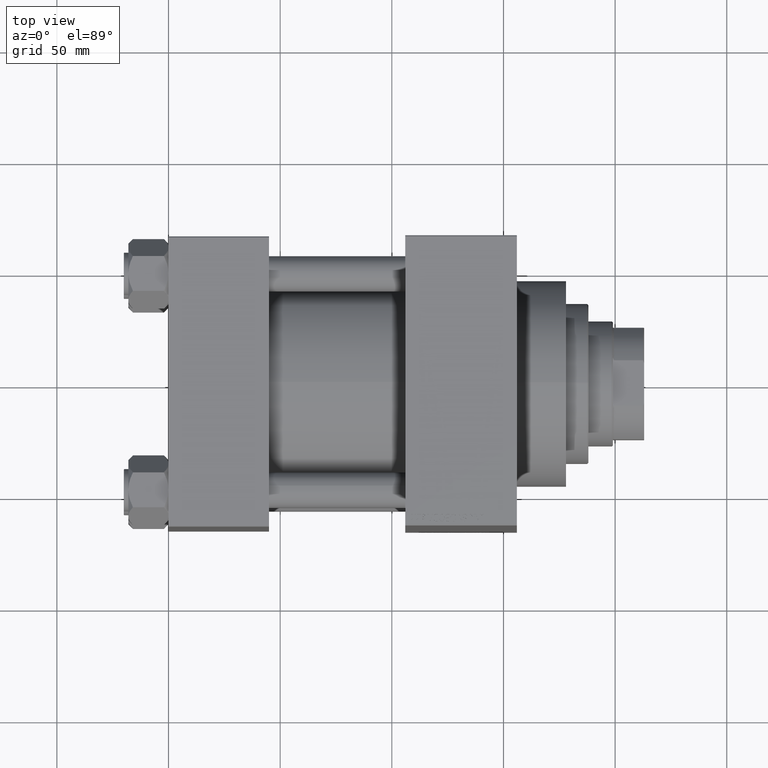
[diagram: clean part render]
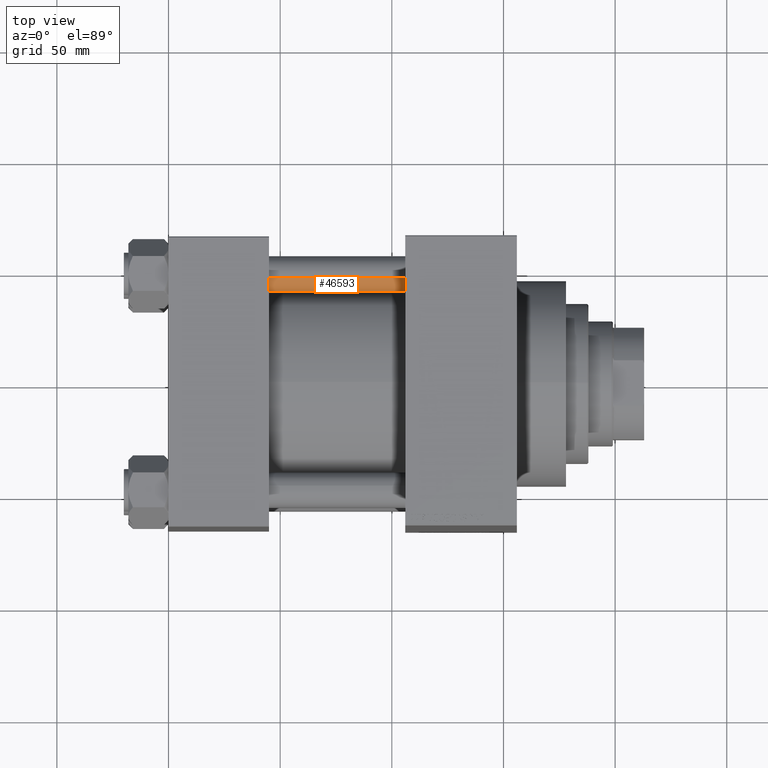
[diagram: same view with one face highlighted and labeled with its STEP entity id]
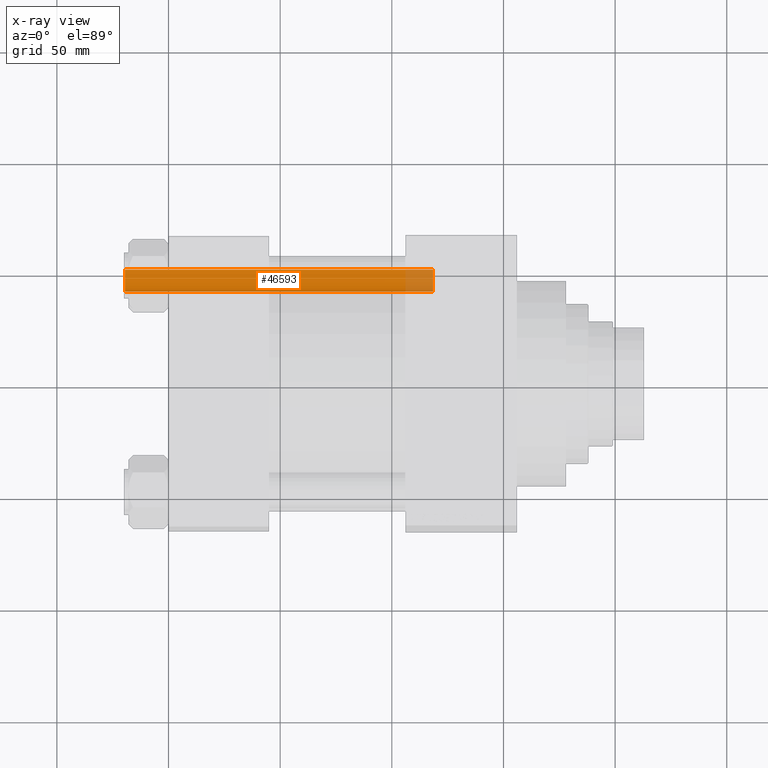
[diagram: x-ray of the same camera — body ghosted, the highlighted face saturated]
A machine part, top view. The second image highlights one B-rep face of the part: STEP entity #46593.
The next image is the same camera in x-ray: the body ghosted, the highlighted face saturated — about 9% of this face is hidden behind the body in this view.
In plain terms, the highlighted cylindrical surface (edge-blend (fillet) strip) has radius 8 mm, axis along (-1, -0, 0).
Its self-contained STEP definition (entity closure, byte-faithful):
#1210 = EDGE_LOOP ( 'NONE', ( #40934, #27871, #44121, #44053 ) ) ;
#2925 = CARTESIAN_POINT ( 'NONE',  ( 8.000000000000000000, 9.797174393178825657E-16, 0.4999999999999726885 ) ) ;
#6658 = CARTESIAN_POINT ( 'NONE',  ( -8.000000000000000000, 0.000000000000000000, 138.5000000000000284 ) ) ;
#8018 = DIRECTION ( 'NONE',  ( -1.000000000000000000, 0.000000000000000000, 0.000000000000000000 ) ) ;
#8712 = CARTESIAN_POINT ( 'NONE',  ( 8.000000000000000000, 9.797174393178825657E-16, 139.0000000000000000 ) ) ;
#9645 = CARTESIAN_POINT ( 'NONE',  ( 8.000000000000000000, 9.797174393178825657E-16, 138.5000000000000284 ) ) ;
#9762 = CARTESIAN_POINT ( 'NONE',  ( -8.000000000000000000, 0.000000000000000000, 0.4999999999999726885 ) ) ;
#10176 = DIRECTION ( 'NONE',  ( 1.000000000000000000, 0.000000000000000000, 0.000000000000000000 ) ) ;
#12384 = VERTEX_POINT ( 'NONE', #9762 ) ;
#12892 = DIRECTION ( 'NONE',  ( 0.000000000000000000, 0.000000000000000000, -1.000000000000000000 ) ) ;
#13626 = EDGE_CURVE ( 'NONE', #12384, #14996, #46841, .T. ) ;
#13896 = AXIS2_PLACEMENT_3D ( 'NONE', #29517, #15747, #8018 ) ;
#14996 = VERTEX_POINT ( 'NONE', #2925 ) ;
#15747 = DIRECTION ( 'NONE',  ( -0.000000000000000000, -0.000000000000000000, -1.000000000000000000 ) ) ;
#16518 = CARTESIAN_POINT ( 'NONE',  ( -8.000000000000000000, 0.000000000000000000, 139.0000000000000000 ) ) ;
#16923 = LINE ( 'NONE', #8712, #22814 ) ;
#18895 = CYLINDRICAL_SURFACE ( 'NONE', #13896, 8.000000000000000000 ) ;
#21549 = CARTESIAN_POINT ( 'NONE',  ( 0.000000000000000000, 0.000000000000000000, 0.4999999999999726885 ) ) ;
#22814 = VECTOR ( 'NONE', #27082, 1000.000000000000000 ) ;
#24503 = CIRCLE ( 'NONE', #37591, 8.000000000000000000 ) ;
#25910 = FACE_OUTER_BOUND ( 'NONE', #1210, .T. ) ;
#27082 = DIRECTION ( 'NONE',  ( -0.000000000000000000, -0.000000000000000000, -1.000000000000000000 ) ) ;
#27871 = ORIENTED_EDGE ( 'NONE', *, *, #35249, .T. ) ;
#28067 = VERTEX_POINT ( 'NONE', #9645 ) ;
#29517 = CARTESIAN_POINT ( 'NONE',  ( 0.000000000000000000, 0.000000000000000000, 139.0000000000000000 ) ) ;
#30533 = CARTESIAN_POINT ( 'NONE',  ( 0.000000000000000000, 0.000000000000000000, 138.5000000000000284 ) ) ;
#31115 = EDGE_CURVE ( 'NONE', #28067, #14996, #16923, .T. ) ;
#32372 = LINE ( 'NONE', #16518, #36272 ) ;
#34636 = DIRECTION ( 'NONE',  ( -0.000000000000000000, -0.000000000000000000, -1.000000000000000000 ) ) ;
#35249 = EDGE_CURVE ( 'NONE', #28067, #43946, #24503, .T. ) ;
#35270 = AXIS2_PLACEMENT_3D ( 'NONE', #21549, #36261, #10176 ) ;
#36261 = DIRECTION ( 'NONE',  ( -0.000000000000000000, -0.000000000000000000, 1.000000000000000000 ) ) ;
#36272 = VECTOR ( 'NONE', #34636, 1000.000000000000000 ) ;
#37591 = AXIS2_PLACEMENT_3D ( 'NONE', #30533, #12892, #45262 ) ;
#40934 = ORIENTED_EDGE ( 'NONE', *, *, #31115, .F. ) ;
#43321 = EDGE_CURVE ( 'NONE', #43946, #12384, #32372, .T. ) ;
#43946 = VERTEX_POINT ( 'NONE', #6658 ) ;
#44053 = ORIENTED_EDGE ( 'NONE', *, *, #13626, .T. ) ;
#44121 = ORIENTED_EDGE ( 'NONE', *, *, #43321, .T. ) ;
#45262 = DIRECTION ( 'NONE',  ( 1.000000000000000000, 0.000000000000000000, 0.000000000000000000 ) ) ;
#46593 = ADVANCED_FACE ( 'NONE', ( #25910 ), #18895, .T. ) ;
#46841 = CIRCLE ( 'NONE', #35270, 8.000000000000000000 ) ;